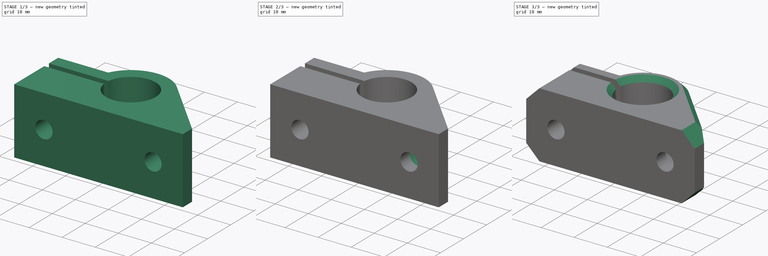
[diagram: build sequence overview — one tinted view per stage of 3, left to right]
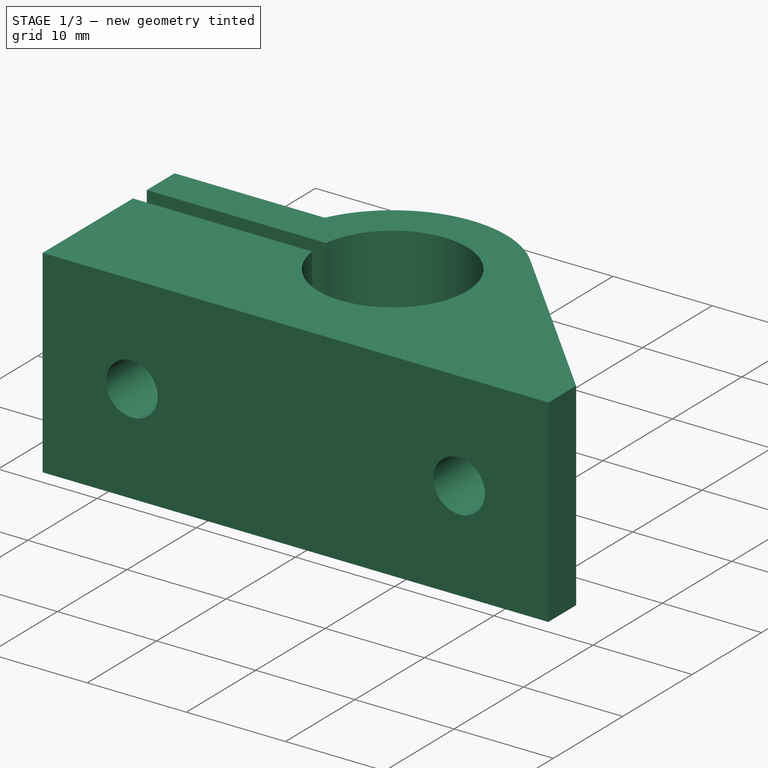
[diagram: stage 1 of 3 — iso view after this stage's code; geometry added in this stage tinted green]
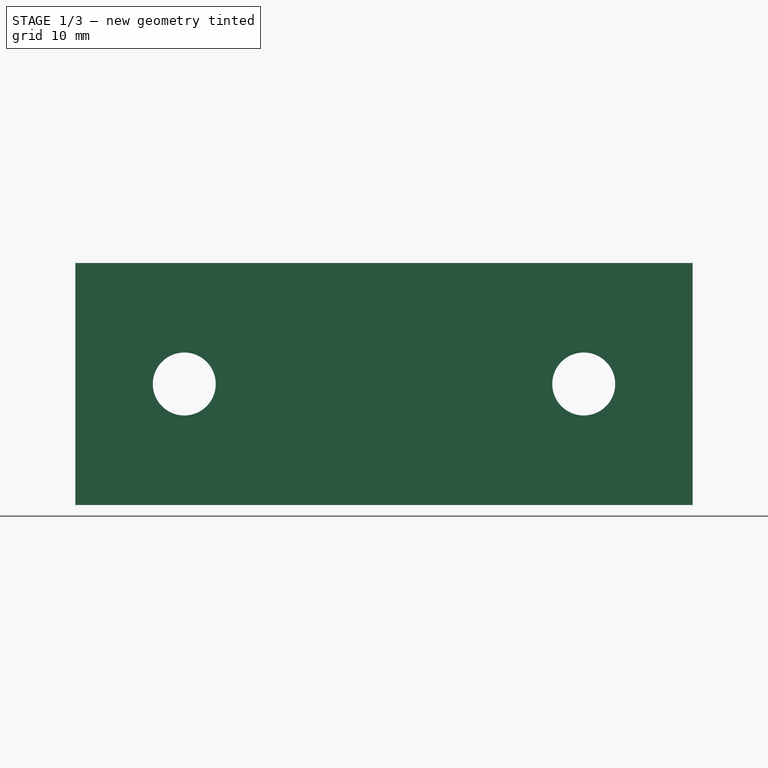
[diagram: stage 1 of 3 — front view after this stage's code; geometry added in this stage tinted green]
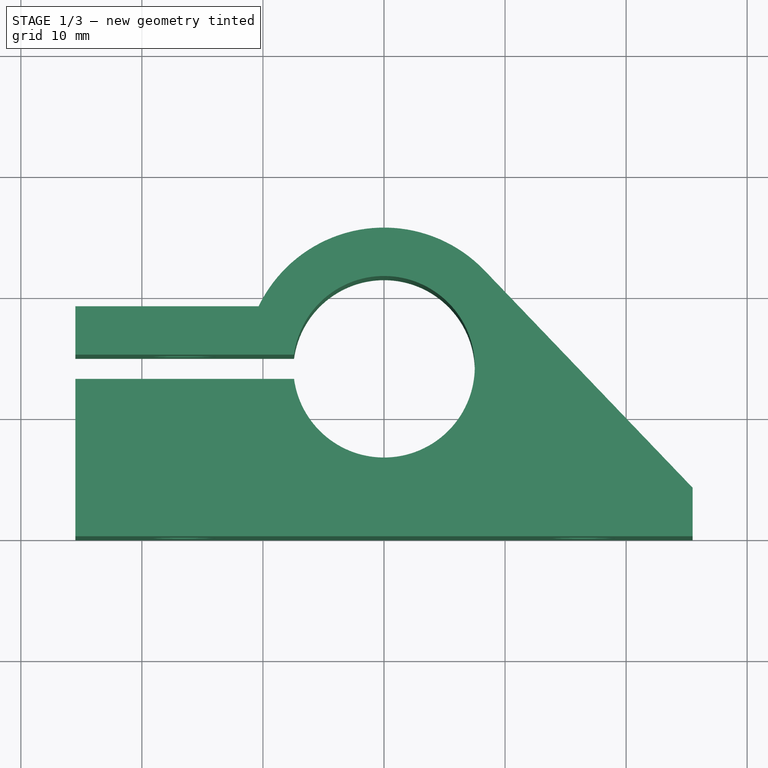
[diagram: stage 1 of 3 — top view after this stage's code; geometry added in this stage tinted green]
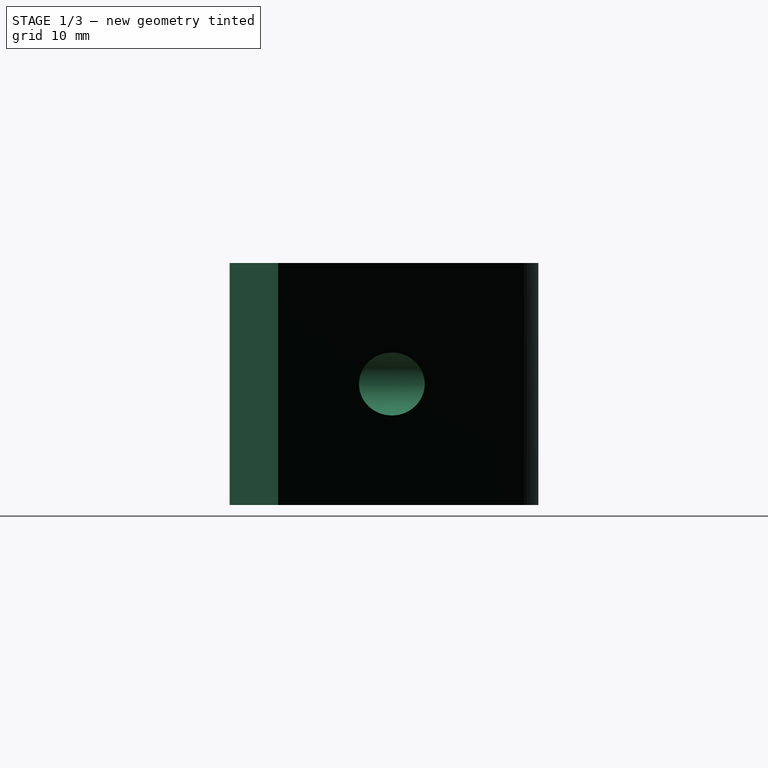
[diagram: stage 1 of 3 — right view after this stage's code; geometry added in this stage tinted green]
FCSTD DOCUMENT  (FreeCAD 0.19R24267 +99 (Git))
Label: bearing_block_LM8UU
License: All rights reserved
LicenseURL: http://en.wikipedia.org/wiki/All_rights_reserved
objects: Sketcher::SketchObject×3, PartDesign::Pocket×2, PartDesign::Chamfer×2, PartDesign::Pad×1, PartDesign::Plane×1, PartDesign::Body×1
note: 15 computed .brp shape members not serialized (recipe doc carries the construction recipe); baked Part::Feature solids carry a one-line shape summary decoded from their .brp

FEATURE [Sketcher::SketchObject] Sketch
  FullyConstrained = true
  MapMode = 5
  Support = -> [XY_Plane]
  sketch-geometry (16):
    g0: ArcOfCircle CenterX=0 CenterY=14 CenterZ=0 NormalX=0 NormalY=0 NormalZ=1 AngleXU=0 Radius=7.5 StartAngle=3.27532 EndAngle=9.29105
    g1: Circle CenterX=0 CenterY=14 CenterZ=0 NormalX=0 NormalY=0 NormalZ=1 AngleXU=0 Radius=11.5
    g2: LineSegment StartX=11.5 StartY=14 StartZ=0 EndX=11.5 EndY=0 EndZ=0
    g3: LineSegment StartX=-7.43303 StartY=15 StartZ=0 EndX=-25.5 EndY=15 EndZ=0
    g4: LineSegment StartX=-7.43303 StartY=13 StartZ=0 EndX=-25.5 EndY=13 EndZ=0
    g5: LineSegment StartX=-25.5 StartY=13 StartZ=0 EndX=-25.5 EndY=0 EndZ=0
    g6: LineSegment StartX=-25.5 StartY=0 StartZ=0 EndX=25.5 EndY=0 EndZ=0
    g7: LineSegment StartX=25.5 StartY=0 StartZ=0 EndX=25.5 EndY=4 EndZ=0
    g8: ArcOfCircle CenterX=0 CenterY=14 CenterZ=0 NormalX=0 NormalY=0 NormalZ=1 AngleXU=0 Radius=11.5 StartAngle=0.763789 EndAngle=2.6918
    g9: LineSegment StartX=25.5 StartY=4 StartZ=0 EndX=8.30554 EndY=21.9541 EndZ=0
    g10: LineSegment StartX=-25.5 StartY=15 StartZ=0 EndX=-25.5 EndY=19 EndZ=0
    g11: LineSegment StartX=-11.5 StartY=14 StartZ=0 EndX=-11.5 EndY=0 EndZ=0
    g12: LineSegment StartX=0 StartY=14 StartZ=0 EndX=-25.5 EndY=14 EndZ=0
    g13: LineSegment StartX=-11.5 StartY=0 StartZ=0 EndX=-16.5 EndY=0 EndZ=0
    g14: LineSegment StartX=-16.5 StartY=0 StartZ=0 EndX=-16.5 EndY=19 EndZ=0
    g15: LineSegment StartX=-25.5 StartY=19 StartZ=0 EndX=-10.3562 EndY=19 EndZ=0
  constraints (49):
    c: PointOnObject(g0,g-2)
    c: Diameter(g0) = 15
    c: DistanceY(g-1,g0) = 14
    c: Coincident(g1,g0)
    c: Diameter(g1) = 23
    c: PointOnObject(g2,g1)
    c: PointOnObject(g2,g-1)
    c: Vertical(g2)
    c: Tangent(g1,g2)
    c: Horizontal(g3)
    c: Horizontal(g4)
    c: Coincident(g5,g4)
    c: PointOnObject(g5,g-1)
    c: Vertical(g5)
    c: Coincident(g6,g5)
    c: PointOnObject(g6,g-1)
    c: DistanceX(g2,g6) = 14
    c: Coincident(g7,g6)
    c: Vertical(g7)
    c: DistanceY(g7,g7) = 4
    c: Coincident(g8,g0)
    c: Coincident(g9,g7)
    c: Tangent(g8,g9) = -1.5708
    c: Coincident(g0,g4)
    c: Coincident(g0,g3)
    c: Coincident(g10,g3)
    c: Vertical(g10)
    c: PointOnObject(g11,g1)
    c: PointOnObject(g11,g6)
    c: Vertical(g11)
    c: Tangent(g11,g1)
    c: DistanceX(g5,g11) = 14
    c: Vertical(g3,g4)
    c: DistanceY(g4,g3) = 2
    c: Coincident(g12,g0)
    c: Horizontal(g12)
    c: Symmetric(g3,g4,g12)
    c: PointOnObject(g8,g1)
    c: Coincident(g13,g11)
    c: PointOnObject(g13,g6)
    c: DistanceX(g13,g11) = 5
    c: Coincident(g14,g13)
    c: Vertical(g14)
    c: DistanceY(g14,g14) = 19
    c: Horizontal(g10,g14)
    c: Horizontal(g8,g10)
    c: Coincident(g15,g10)
    c: Coincident(g15,g8)
    c: DistanceY(g3,g10) = 4
FEATURE [PartDesign::Pad] Pad
  Direction = (1,1,1)
  Length = 20
  Length2 = 100
  Profile = -> Sketch
  Type = 0
FEATURE [Sketcher::SketchObject] Sketch001
  FullyConstrained = true
  MapMode = 5
  Placement = pos=(0,0,0) rot=(1,0,0;1.5708rad)
  Support = -> [XZ_Plane]
  sketch-geometry (2):
    g0: Circle CenterX=-16.5 CenterY=10 CenterZ=0 NormalX=0 NormalY=0 NormalZ=1 AngleXU=0 Radius=2.6
    g1: Circle CenterX=16.5 CenterY=10 CenterZ=0 NormalX=0 NormalY=0 NormalZ=1 AngleXU=0 Radius=2.6
  constraints (5):
    c: DistanceY(g-1,g0) = 10
    c: Diameter(g0) = 5.2
    c: Equal(g0,g1)
    c: Symmetric(g0,g1,g-2)
    c: DistanceX(g0,g-1) = 16.5
FEATURE [PartDesign::Pocket] Pocket
  BaseFeature = -> Pad
  Length = 5
  Length2 = 100
  Profile = -> Sketch001
  Type = 1
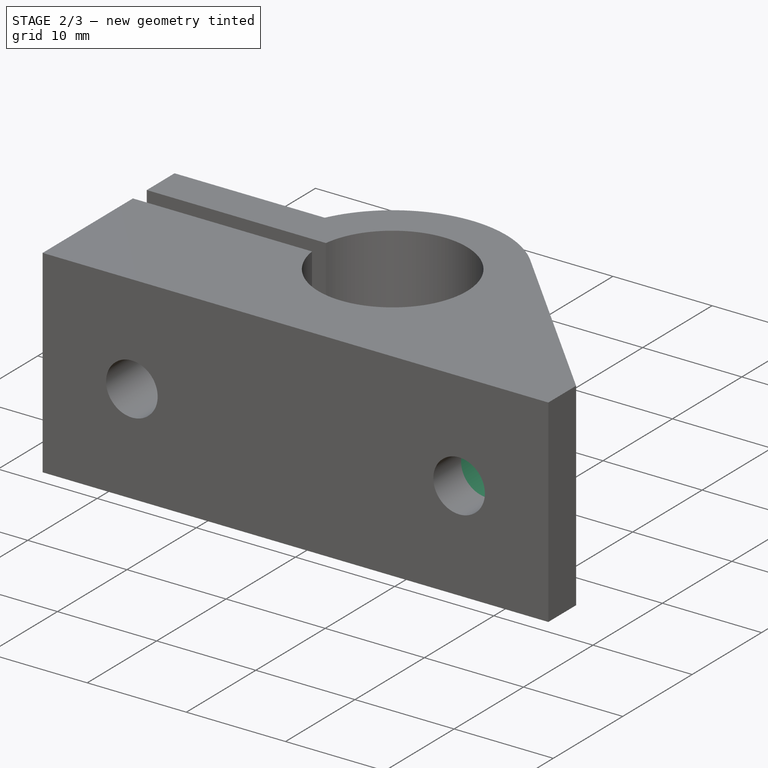
[diagram: stage 2 of 3 — iso view after this stage's code; geometry added in this stage tinted green]
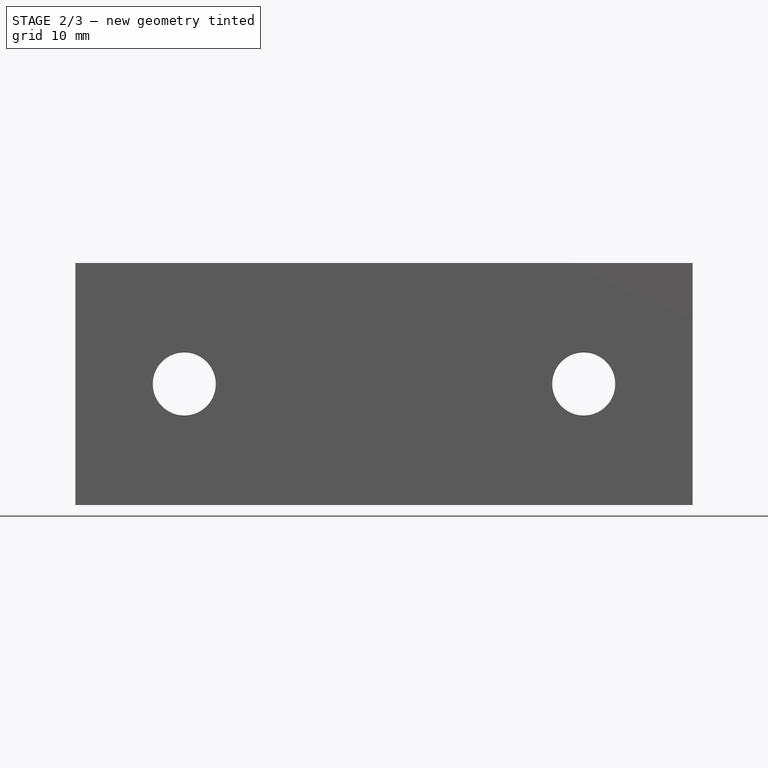
[diagram: stage 2 of 3 — front view after this stage's code; geometry added in this stage tinted green]
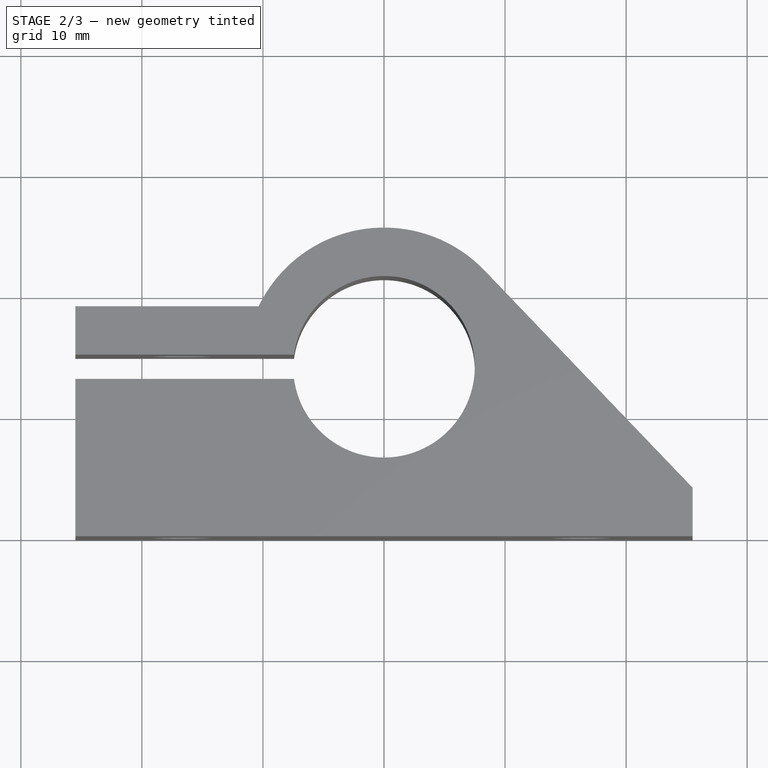
[diagram: stage 2 of 3 — top view after this stage's code; geometry added in this stage tinted green]
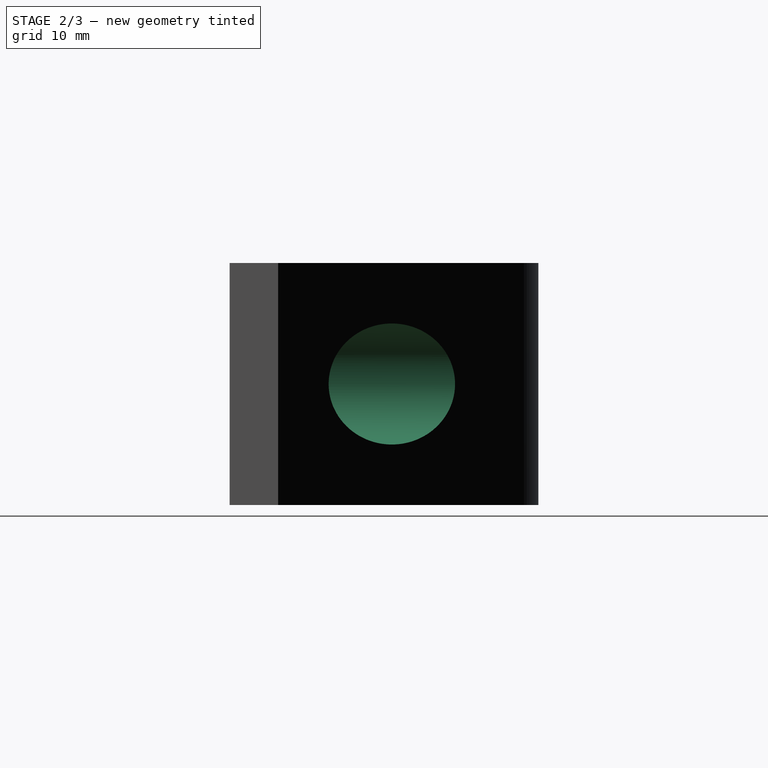
[diagram: stage 2 of 3 — right view after this stage's code; geometry added in this stage tinted green]
FEATURE [PartDesign::Plane] DatumPlane
  AttachmentOffset = pos=(0,0,-4) rot=(0,0,1;0rad)
  Length = 60
  MapMode = 5
  Placement = pos=(0,4,9e-16) rot=(1,0,0;1.5708rad)
  ResizeMode = 0
  Support = -> [XZ_Plane]
  Width = 60
FEATURE [Sketcher::SketchObject] Sketch002
  FullyConstrained = true
  MapMode = 5
  Placement = pos=(0,4,9e-16) rot=(1,0,0;1.5708rad)
  Support = -> [DatumPlane]
  sketch-geometry (1):
    g0: Circle CenterX=16.5 CenterY=10 CenterZ=0 NormalX=0 NormalY=0 NormalZ=1 AngleXU=0 Radius=5
  constraints (3):
    c: DistanceX(g-1,g0) = 16.5
    c: DistanceY(g-1,g0) = 10
    c: Diameter(g0) = 10
FEATURE [PartDesign::Pocket] Pocket001
  BaseFeature = -> Pocket
  Length = 5
  Length2 = 100
  Profile = -> Sketch002
  Type = 1
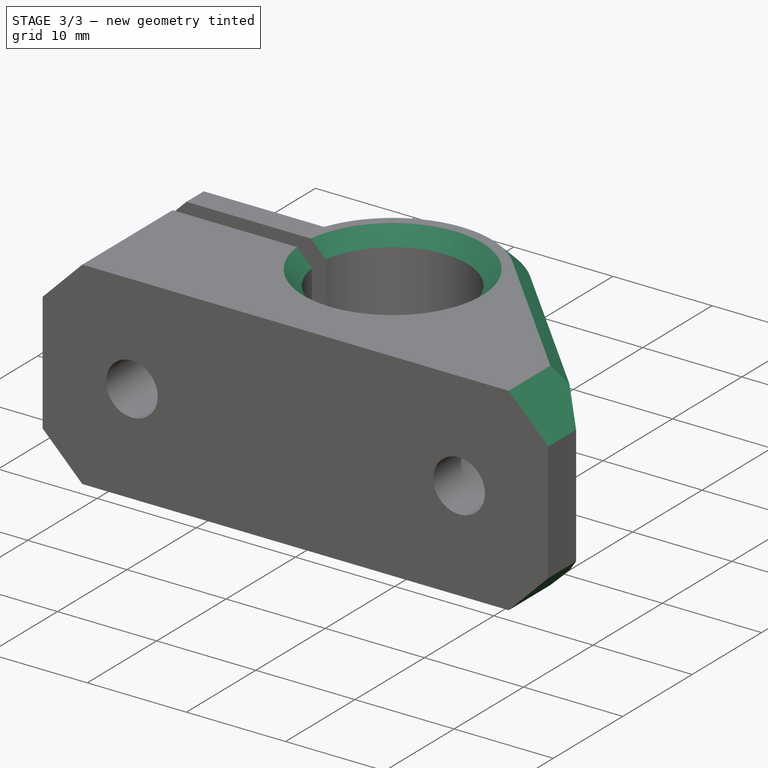
[diagram: stage 3 of 3 — iso view after this stage's code; geometry added in this stage tinted green]
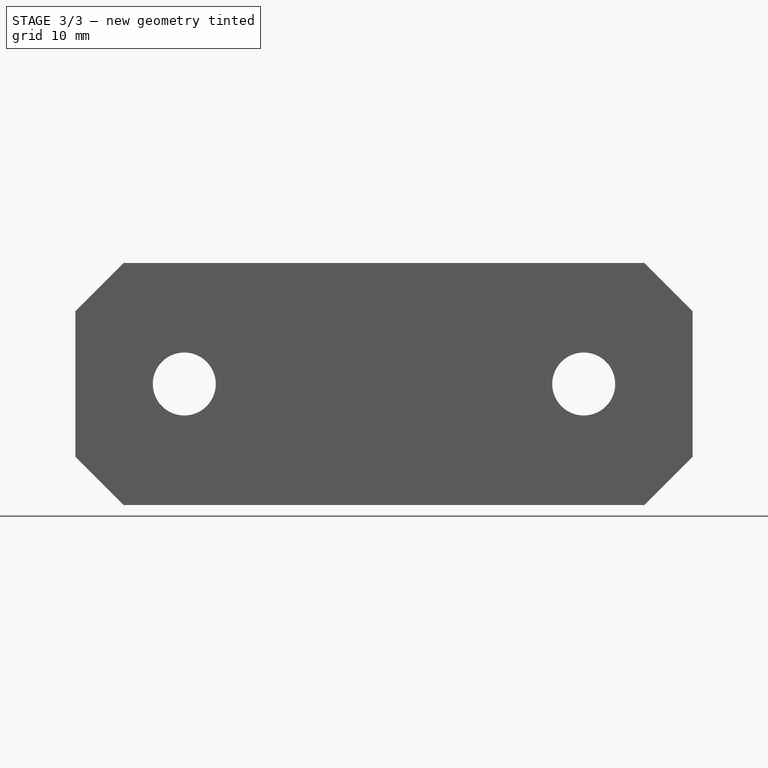
[diagram: stage 3 of 3 — front view after this stage's code; geometry added in this stage tinted green]
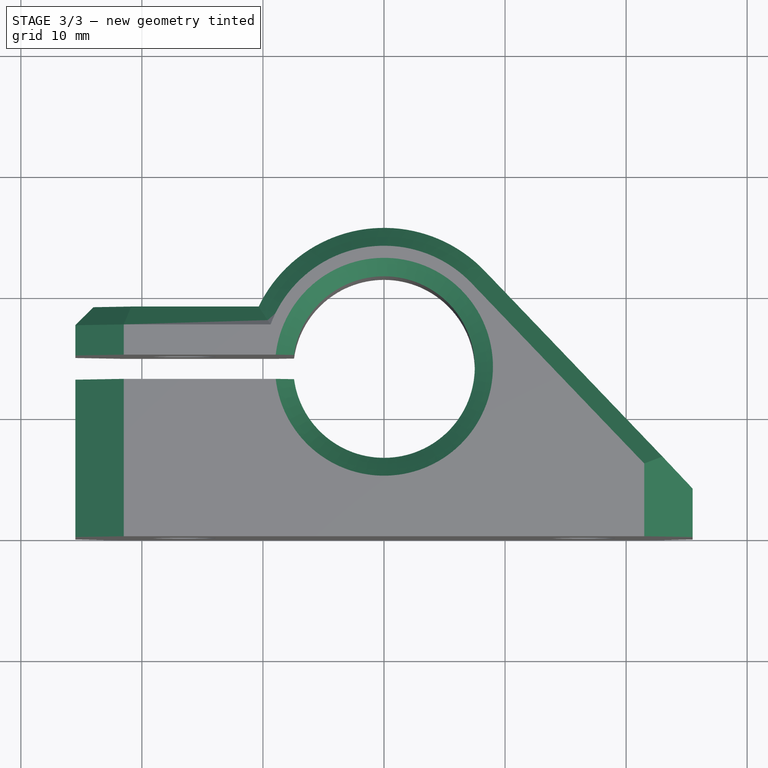
[diagram: stage 3 of 3 — top view after this stage's code; geometry added in this stage tinted green]
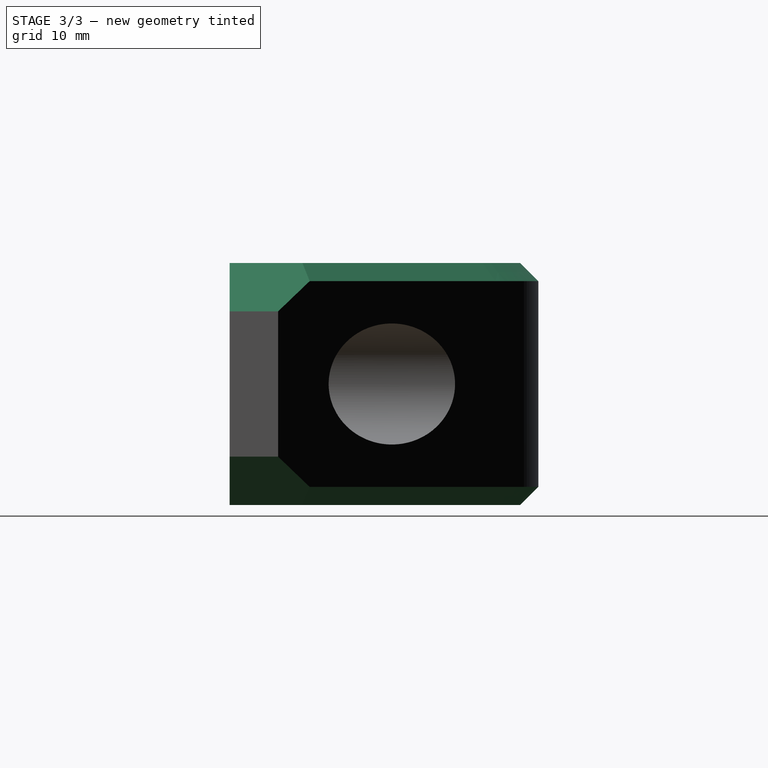
[diagram: stage 3 of 3 — right view after this stage's code; geometry added in this stage tinted green]
FEATURE [PartDesign::Chamfer] Chamfer
  Angle = 45
  Base = -> Pocket001 [Edge22,Edge18,Edge14,Edge10,Edge8,Edge7]
  BaseFeature = -> Pocket001
  ChamferType = 0
  FlipDirection = false
  Size = 4
  Size2 = 1
  SupportTransform = false
FEATURE [PartDesign::Chamfer] Chamfer001
  Angle = 45
  Base = -> Chamfer [Edge30,Edge22,Edge23,Edge25,Edge41,Edge39,Edge40,Edge17,Edge15,Edge5,Edge4]
  BaseFeature = -> Chamfer
  ChamferType = 0
  FlipDirection = false
  Size = 1.5
  Size2 = 1
  SupportTransform = false
FEATURE [PartDesign::Body] Body
  Group = -> [Sketch,Pad,Sketch001,Pocket,DatumPlane,Sketch002,Pocket001,Chamfer,Chamfer001]
  Origin = -> Origin
  Tip = -> Chamfer001
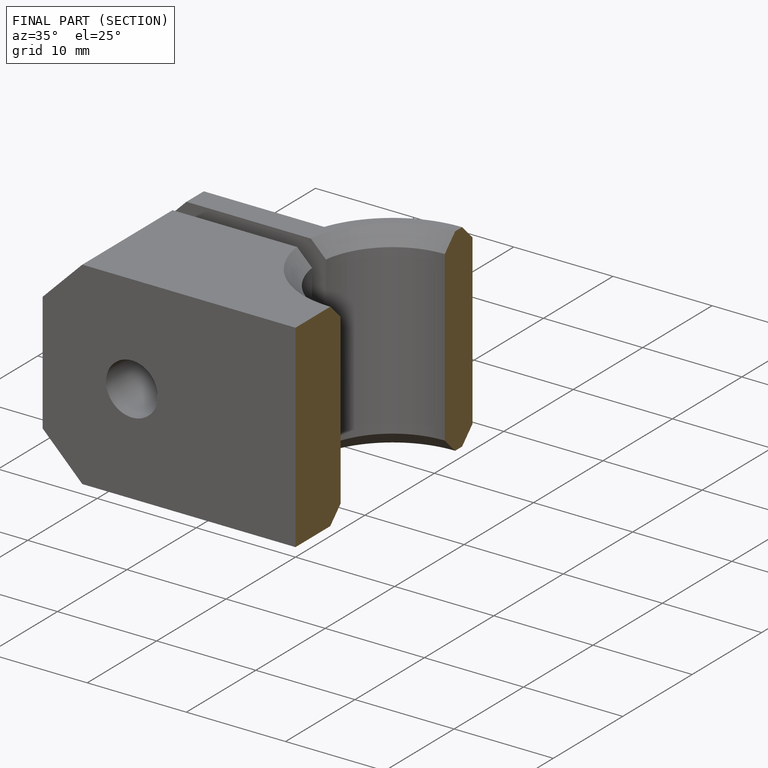
[diagram: finished part — half-section view (interior)]
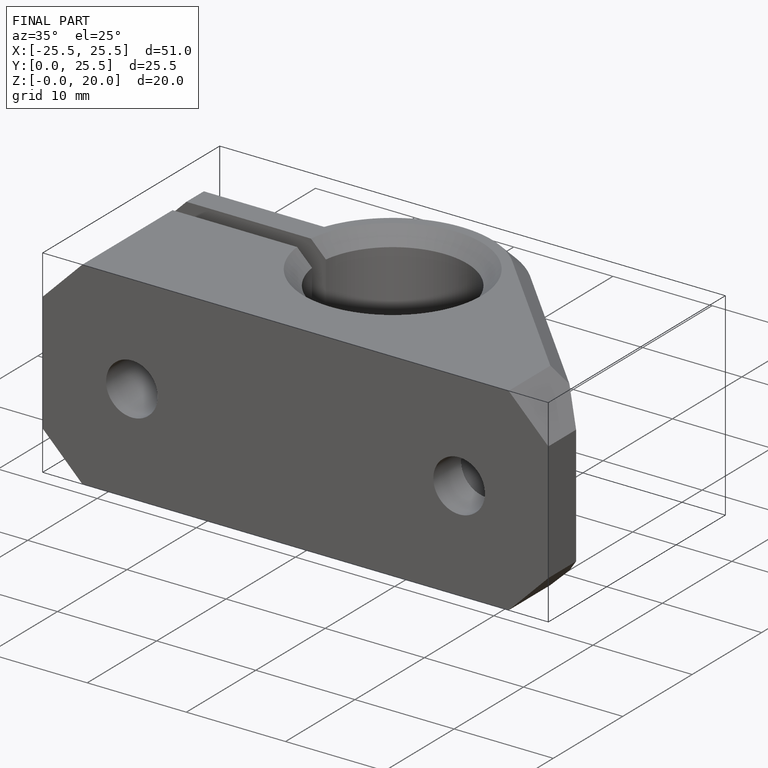
[diagram: finished part — iso view with bounding-box wireframe]
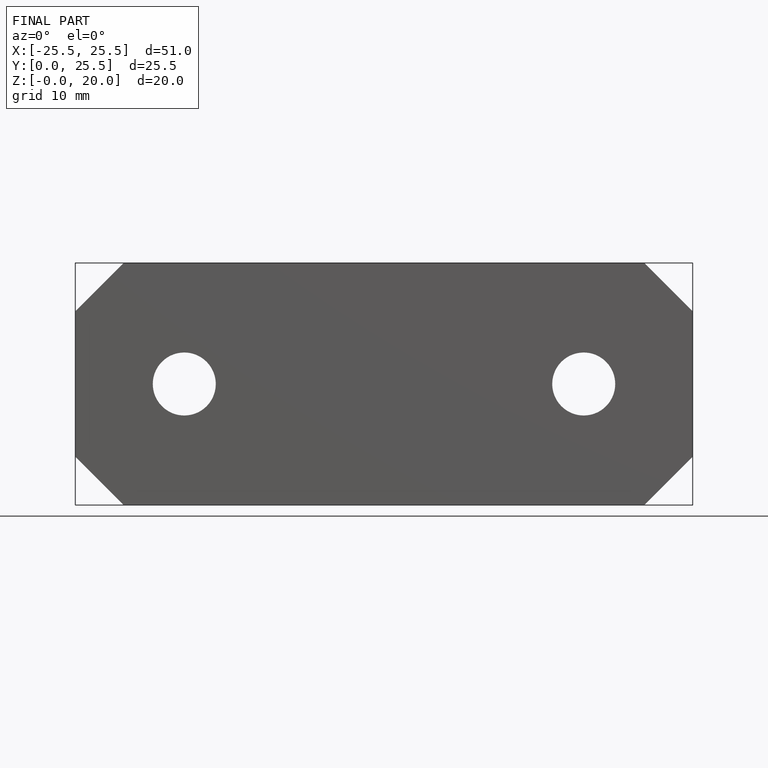
[diagram: finished part — front view with bounding-box wireframe]
